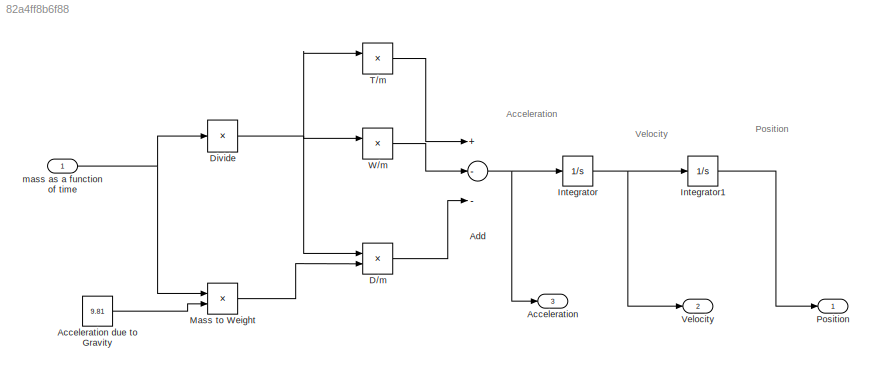
MODEL slx_82a4ff8b6f88
KIND model
BLOCK [Outport] Acceleration
  IconDisplay = Port number
  Port = 3
BLOCK [Constant] Acceleration due to Gravity
  Value = 9.81
BLOCK [Sum] Add
  InputSameDT = off
  Inputs = +--
  OutDataTypeStr = Inherit: Inherit via internal rule
  Ports = [3, 1]
  SaturateOnIntegerOverflow = off
BLOCK [Product] D//m
  InputSameDT = off
  OutDataTypeStr = Inherit: Inherit via internal rule
  Ports = [2, 1]
  RndMeth = Floor
  SaturateOnIntegerOverflow = off
BLOCK [Product] Divide
  InputSameDT = off
  Inputs = /
  OutDataTypeStr = Inherit: Inherit via internal rule
  Ports = [1, 1]
  RndMeth = Floor
  SaturateOnIntegerOverflow = off
BLOCK [Integrator] Integrator
  Ports = [1, 1]
BLOCK [Integrator] Integrator1
  Ports = [1, 1]
BLOCK [Product] Mass to Weight
  InputSameDT = off
  OutDataTypeStr = Inherit: Inherit via internal rule
  Ports = [2, 1]
  RndMeth = Floor
  SaturateOnIntegerOverflow = off
BLOCK [Outport] Position
  IconDisplay = Port number
BLOCK [Product] T//m
  InputSameDT = off
  OutDataTypeStr = Inherit: Inherit via internal rule
  Ports = [2, 1]
  RndMeth = Floor
  SaturateOnIntegerOverflow = off
BLOCK [Outport] Velocity
  IconDisplay = Port number
  Port = 2
BLOCK [Product] W//m
  InputSameDT = off
  OutDataTypeStr = Inherit: Inherit via internal rule
  Ports = [2, 1]
  RndMeth = Floor
  SaturateOnIntegerOverflow = off
BLOCK [Inport] mass as a function of time
  IconDisplay = Port number
ANNOTATION (root): Acceleration
ANNOTATION (root): Position
ANNOTATION (root): Velocity
LINE Acceleration due to Gravity:1 -> Mass to Weight:2
NET Add:1 -> Acceleration:1, Integrator:1
LINE D//m:1 -> Add:3
NET Divide:1 -> D//m:1, T//m:1, W//m:1
LINE Integrator1:1 -> Position:1
NET Integrator:1 -> Integrator1:1, Velocity:1
LINE Mass to Weight:1 -> D//m:2
LINE T//m:1 -> Add:1
LINE W//m:1 -> Add:2
NET mass as a function of time:1 -> Divide:1, Mass to Weight:1
note: NET lines group one-source signal fan-out (src -> all destinations, sorted); 1:1 wires keep LINE
